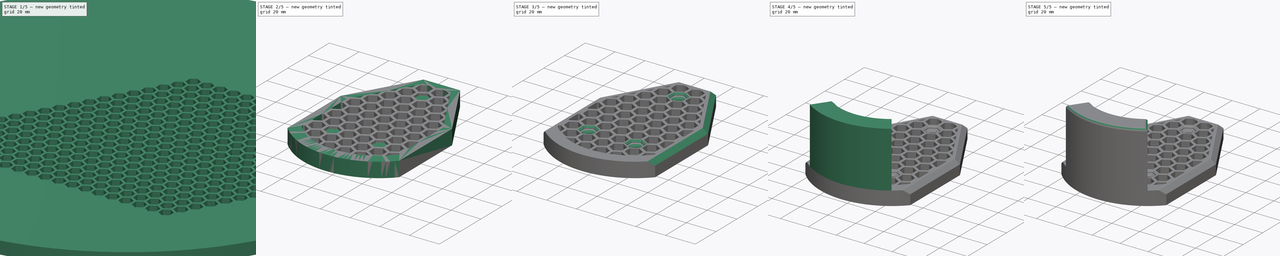
[diagram: build sequence overview — one tinted view per stage of 5, left to right]
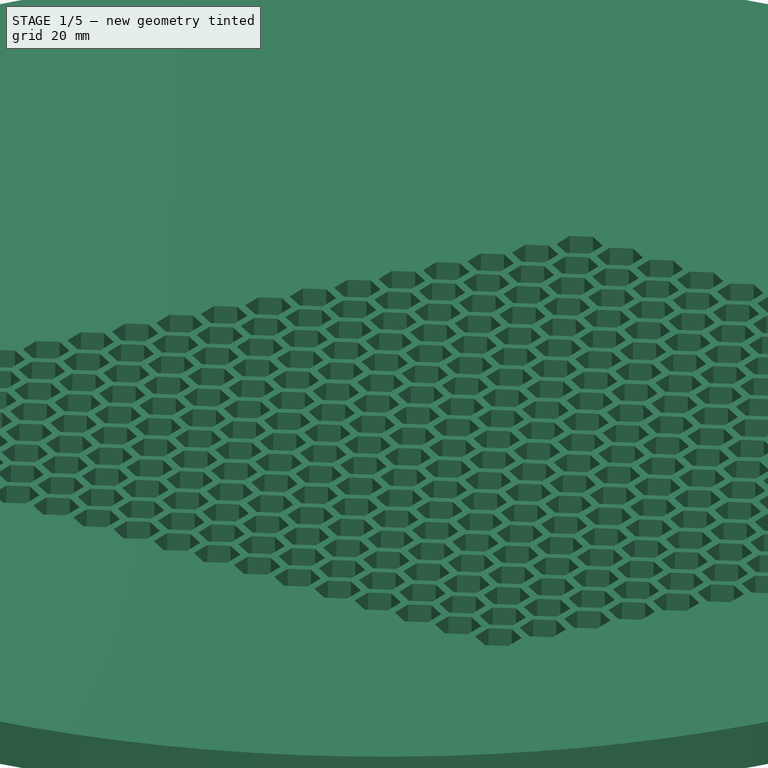
[diagram: stage 1 of 5 — iso view after this stage's code; geometry added in this stage tinted green]
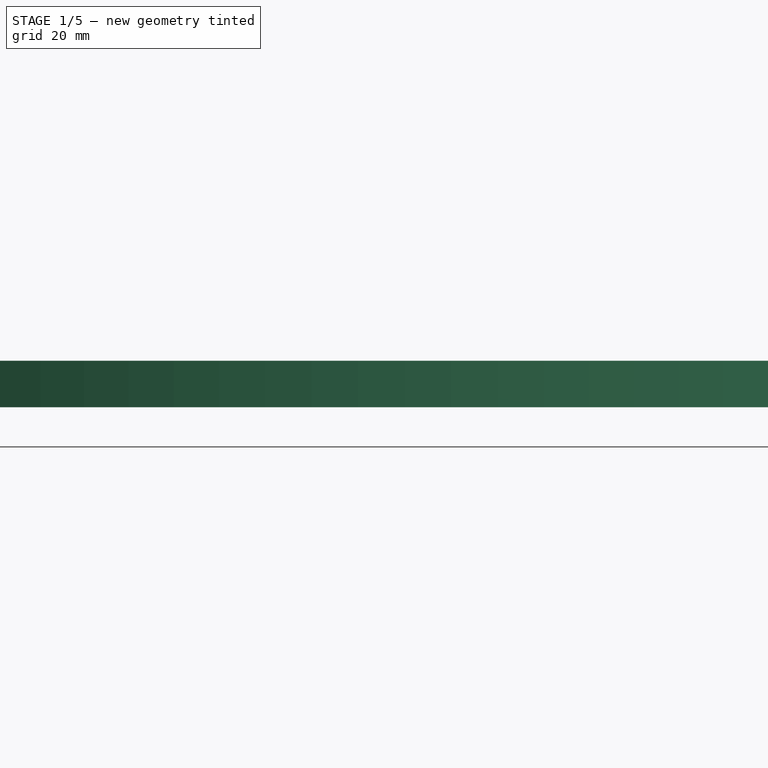
[diagram: stage 1 of 5 — front view after this stage's code; geometry added in this stage tinted green]
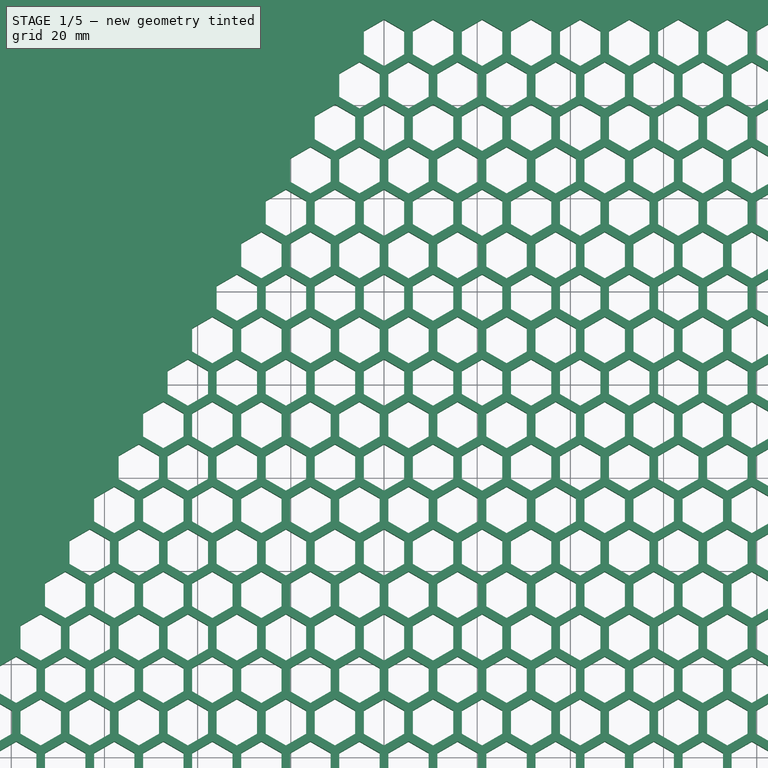
[diagram: stage 1 of 5 — top view after this stage's code; geometry added in this stage tinted green]
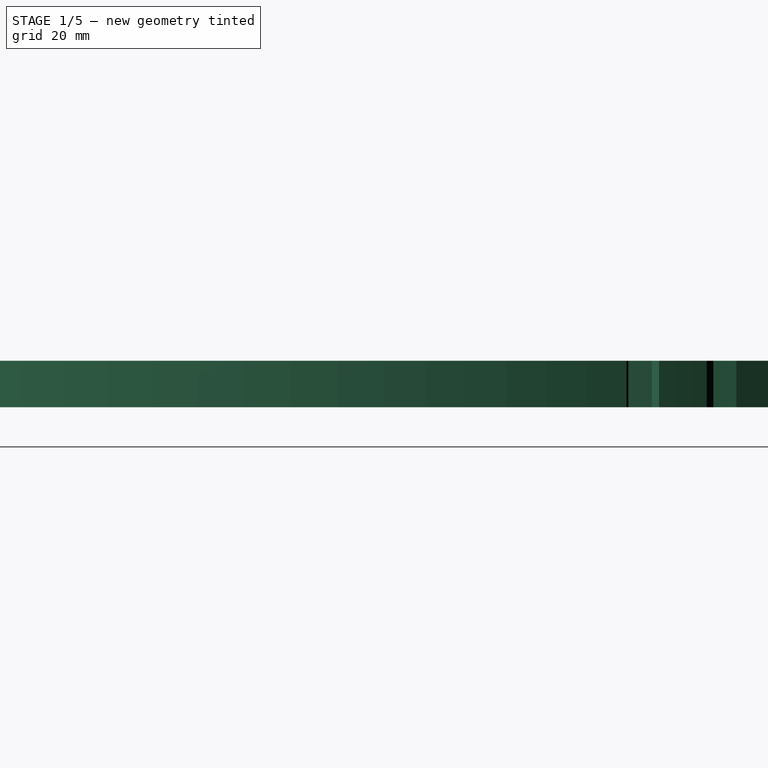
[diagram: stage 1 of 5 — right view after this stage's code; geometry added in this stage tinted green]
FCSTD DOCUMENT  (FreeCAD 0.19R14555 (Git shallow))
Label: heel
License: All rights reserved
LicenseURL: http://en.wikipedia.org/wiki/All_rights_reserved
objects: Sketcher::SketchObject×9, PartDesign::Pad×6, PartDesign::Chamfer×3, PartDesign::Pocket×2, PartDesign::LinearPattern×2, PartDesign::Fillet×2, PartDesign::Line×1, PartDesign::MultiTransform×1, PartDesign::Hole×1, PartDesign::Body×1
note: 42 computed .brp shape members not serialized (recipe doc carries the construction recipe); baked Part::Feature solids carry a one-line shape summary decoded from their .brp

FEATURE [Sketcher::SketchObject] Sketch
  FullyConstrained = true
  MapMode = 5
  Support = -> [XY_Plane]
  sketch-geometry (1):
    g0: Circle CenterX=0 CenterY=0 CenterZ=0 NormalX=0 NormalY=0 NormalZ=1 AngleXU=0 Radius=200
  constraints (2):
    c: Coincident(g0,g-1)
    c: Radius(g0) = 200
FEATURE [PartDesign::Pad] Pad
  Direction = (1,1,1)
  Length = 10
  Length2 = 100
  Profile = -> Sketch
  Type = 0
FEATURE [Sketcher::SketchObject] Sketch001  label="hexagon"
  FullyConstrained = true
  MapMode = 5
  Placement = pos=(0,0,10) rot=(0,0,1;0rad)
  Support = -> [Pad]
  sketch-geometry (8):
    g0: LineSegment StartX=-100 StartY=-95 StartZ=0 EndX=-104.33 EndY=-97.5 EndZ=0
    g1: LineSegment StartX=-104.33 StartY=-97.5 StartZ=0 EndX=-104.33 EndY=-102.5 EndZ=0
    g2: LineSegment StartX=-104.33 StartY=-102.5 StartZ=0 EndX=-100 EndY=-105 EndZ=0
    g3: LineSegment StartX=-100 StartY=-105 StartZ=0 EndX=-95.6699 EndY=-102.5 EndZ=0
    g4: LineSegment StartX=-95.6699 StartY=-102.5 StartZ=0 EndX=-95.6699 EndY=-97.5 EndZ=0
    g5: LineSegment StartX=-95.6699 StartY=-97.5 StartZ=0 EndX=-100 EndY=-95 EndZ=0
    g6: Circle CenterX=-100 CenterY=-100 CenterZ=0 NormalX=0 NormalY=0 NormalZ=1 AngleXU=0 Radius=5
    g7: LineSegment StartX=-104.33 StartY=-102.5 StartZ=0 EndX=-100 EndY=-95 EndZ=0
  constraints (19):
    c: Coincident(g0,g1)
    c: Coincident(g1,g2)
    c: Coincident(g2,g3)
    c: Coincident(g3,g4)
    c: Coincident(g4,g5)
    c: Coincident(g5,g0)
    c: Equal(g0, g1-g5) x5
    c: PointOnObject(g0,g6)
    c: PointOnObject(g1,g6)
    c: PointOnObject(g2,g6)
    c: PointOnObject(g3,g6)
    c: PointOnObject(g4,g6)
    c: PointOnObject(g5,g6)
    c: DistanceX(g6,g-1) = 100
    c: DistanceY(g6,g-1) = 100
    c: Vertical(g1)
    c: Distance(g1) = 5
    c: Coincident(g7,g1)
    c: Coincident(g7,g0)
FEATURE [PartDesign::Pocket] Pocket
  BaseFeature = -> Pad
  Length = 5
  Length2 = 100
  Profile = -> Sketch001
  Type = 1
FEATURE [PartDesign::Line] DatumLine001
  AttacherType = Attacher::AttachEngineLine
  Length = 20
  MapMode = 29
  Placement = pos=(-33.8638,19.5513,10) rot=(0.186157,0.694747,0.694747;2.77349rad)
  ResizeMode = 0
FEATURE [PartDesign::LinearPattern] LinearPattern
  Direction = -> Sketch001 [H_Axis]
  Length = 200
  Occurrences = 20
FEATURE [PartDesign::LinearPattern] LinearPattern001
  Direction = -> DatumLine001
  Length = 200
  Occurrences = 20
FEATURE [PartDesign::MultiTransform] MultiTransform
  BaseFeature = -> Pocket
  Originals = -> [Pocket]
  Transformations = -> [LinearPattern,LinearPattern001]
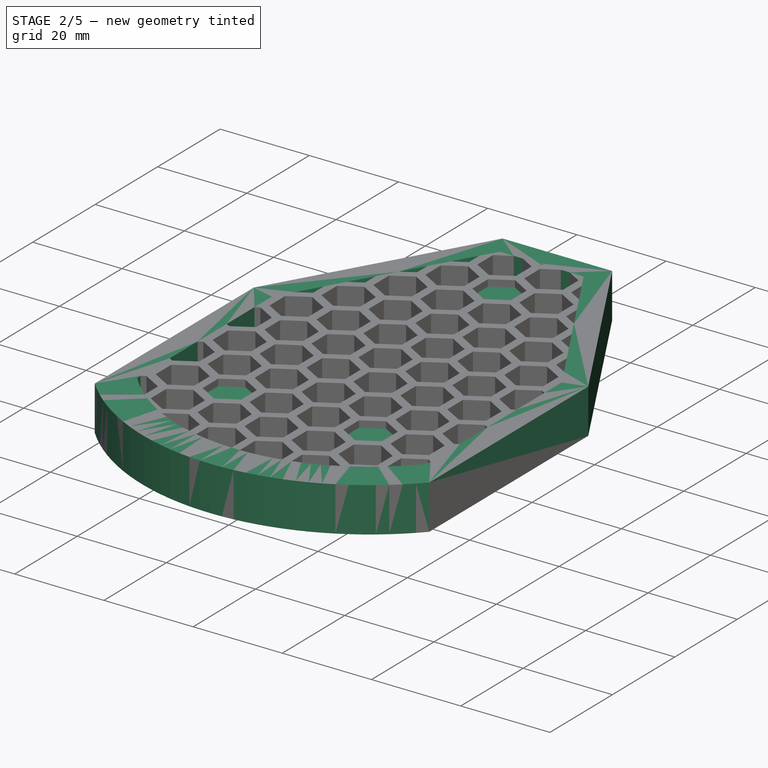
[diagram: stage 2 of 5 — iso view after this stage's code; geometry added in this stage tinted green]
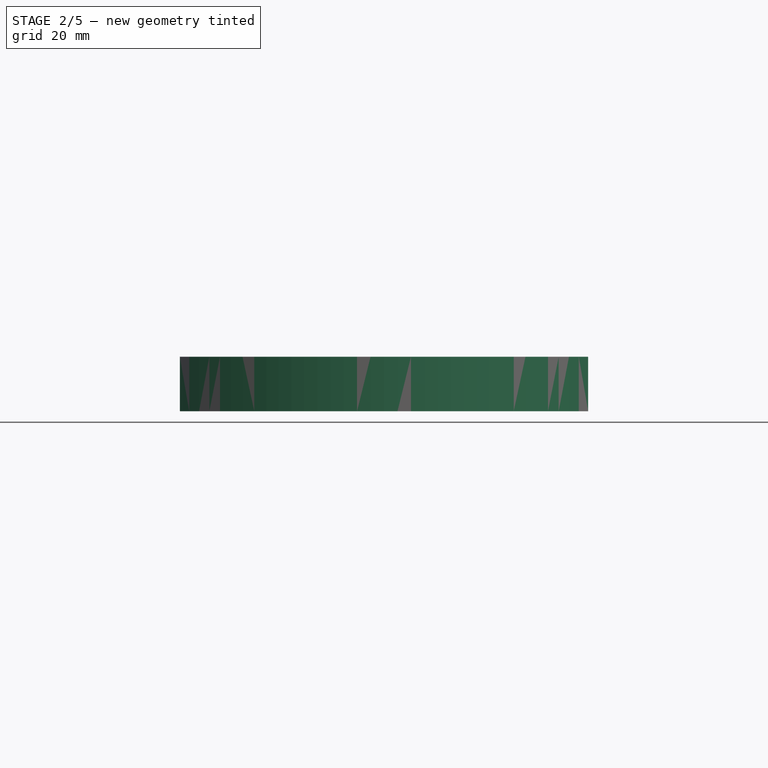
[diagram: stage 2 of 5 — front view after this stage's code; geometry added in this stage tinted green]
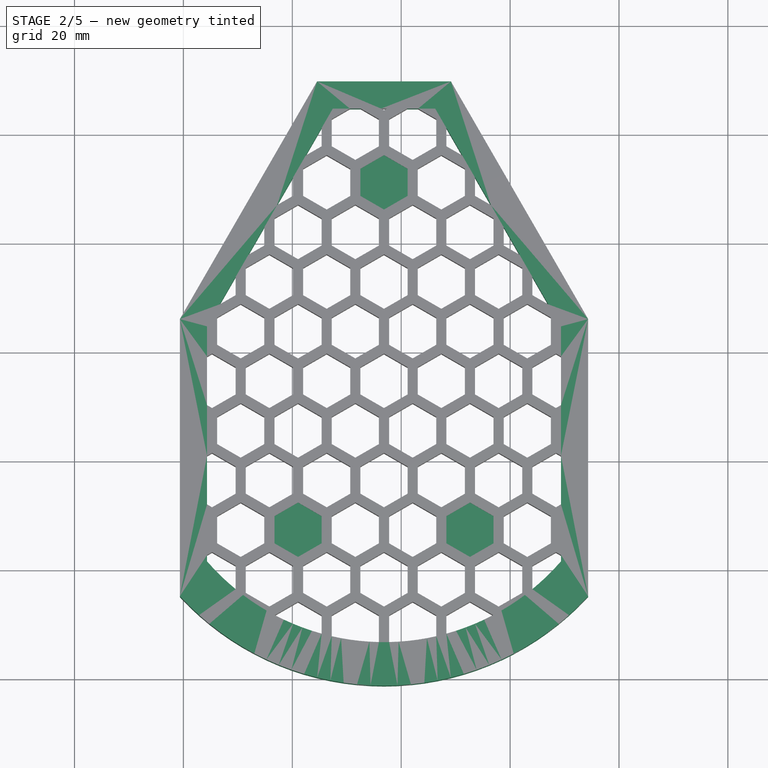
[diagram: stage 2 of 5 — top view after this stage's code; geometry added in this stage tinted green]
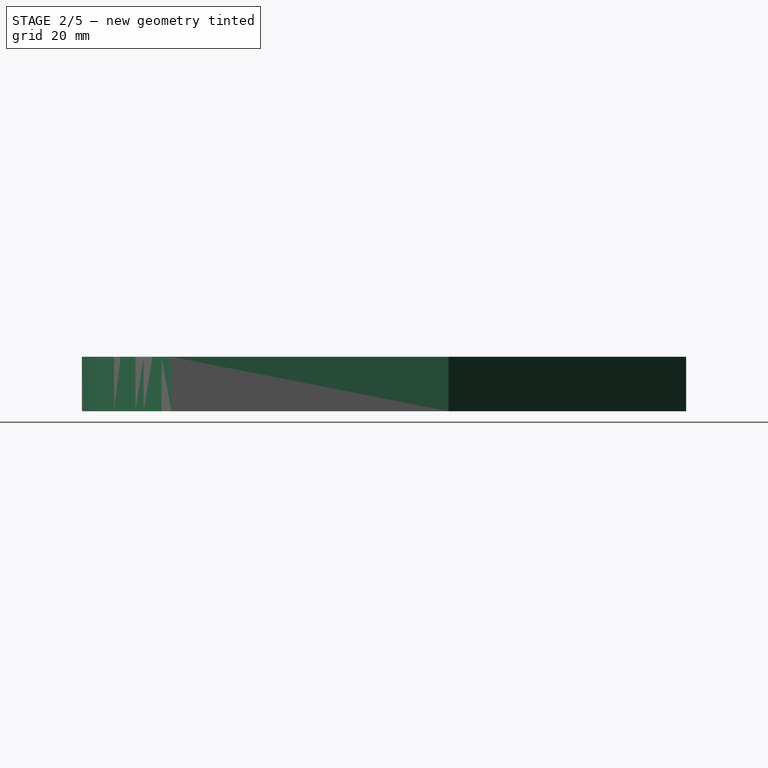
[diagram: stage 2 of 5 — right view after this stage's code; geometry added in this stage tinted green]
FEATURE [Sketcher::SketchObject] Sketch002
  ExternalGeometry = -> [MultiTransform]
  FullyConstrained = true
  MapMode = 5
  Placement = pos=(0,0,10) rot=(0,0,1;0rad)
  Support = -> [MultiTransform]
  sketch-geometry (10):
    g0: ArcOfCircle CenterX=36.8421 CenterY=-50.3037 CenterZ=0 NormalX=0 NormalY=0 NormalZ=1 AngleXU=0 Radius=43 StartAngle=3.85549 EndAngle=5.56929
    g1: Circle CenterX=0 CenterY=0 CenterZ=0 NormalX=0 NormalY=0 NormalZ=1 AngleXU=0 Radius=200
    g2: LineSegment StartX=4.34211 StartY=-78.4595 StartZ=0 EndX=4.34211 EndY=-35.3037 EndZ=0
    g3: LineSegment StartX=4.34211 StartY=-35.3037 StartZ=0 EndX=27.4361 EndY=4.69634 EndZ=0
    g4: LineSegment StartX=27.4361 StartY=4.69634 StartZ=0 EndX=36.8421 EndY=4.69634 EndZ=0
    g5: LineSegment StartX=36.8421 StartY=4.69634 StartZ=0 EndX=46.2481 EndY=4.69634 EndZ=0
    g6: LineSegment StartX=46.2481 StartY=4.69634 StartZ=0 EndX=69.3421 EndY=-35.3037 EndZ=0
    g7: LineSegment StartX=69.3421 StartY=-35.3037 StartZ=0 EndX=69.3421 EndY=-78.4595 EndZ=0
    g8: LineSegment StartX=36.8421 StartY=-50.3037 StartZ=0 EndX=4.34211 EndY=-50.3037 EndZ=0
    g9: LineSegment StartX=36.8421 StartY=-50.3037 StartZ=0 EndX=69.3421 EndY=-50.3037 EndZ=0
  constraints (29):
    c: Radius(g0) = 43
    c: Coincident(g0,g-3)
    c: Coincident(g1,g-1)
    c: Radius(g1) = 200
    c: Vertical(g2)
    c: Coincident(g2,g3)
    c: Coincident(g3,g4)
    c: Horizontal(g4)
    c: Coincident(g4,g5)
    c: Horizontal(g5)
    c: Coincident(g5,g6)
    c: Coincident(g6,g7)
    c: Vertical(g7)
    c: Equal(g3,g6)
    c: Equal(g4,g5)
    c: Angle(g3) = 1.0472
    c: Angle(g6) = -1.0472
    c: Coincident(g8,g0)
    c: PointOnObject(g8,g2)
    c: Horizontal(g8)
    c: Coincident(g9,g0)
    c: PointOnObject(g9,g7)
    c: Horizontal(g9)
    c: Equal(g8,g9)
    c: Distance(g8) = 32.5
    c: Coincident(g2,g0)
    c: Coincident(g0,g7)
    c: DistanceY(g0,g4) = 55
    c: DistanceY(g9,g6) = 15
FEATURE [PartDesign::Pocket] Pocket001  label="trim_honeycomb"
  BaseFeature = -> MultiTransform
  Length = 5
  Length2 = 100
  Profile = -> Sketch002
  Type = 1
FEATURE [Sketcher::SketchObject] Sketch003
  ExternalGeometry = -> [Pocket001]
  FullyConstrained = true
  MapMode = 5
  Placement = pos=(0,0,10) rot=(0,0,1;0rad)
  Support = -> [Pocket001]
  sketch-geometry (17):
    g0: LineSegment StartX=4.34211 StartY=-78.4595 StartZ=0 EndX=4.34211 EndY=-35.3037 EndZ=0
    g1: LineSegment StartX=4.34211 StartY=-35.3037 StartZ=0 EndX=27.4361 EndY=4.69634 EndZ=0
    g2: LineSegment StartX=27.4361 StartY=4.69634 StartZ=0 EndX=46.2481 EndY=4.69634 EndZ=0
    g3: LineSegment StartX=46.2481 StartY=4.69634 StartZ=0 EndX=69.3421 EndY=-35.3037 EndZ=0
    g4: LineSegment StartX=69.3421 StartY=-35.3037 StartZ=0 EndX=69.3421 EndY=-78.4595 EndZ=0
    g5: ArcOfCircle CenterX=36.8421 CenterY=-50.3037 CenterZ=0 NormalX=0 NormalY=0 NormalZ=1 AngleXU=0 Radius=43 StartAngle=3.85549 EndAngle=5.56929
    g6: LineSegment StartX=-0.657895 StartY=-84.8688 StartZ=0 EndX=-0.657895 EndY=-33.9639 EndZ=0
    g7: LineSegment StartX=-0.657895 StartY=-33.9639 StartZ=0 EndX=24.5494 EndY=9.69634 EndZ=0
    g8: LineSegment StartX=24.5494 StartY=9.69634 StartZ=0 EndX=49.1348 EndY=9.69634 EndZ=0
    g9: LineSegment StartX=49.1348 StartY=9.69634 StartZ=0 EndX=74.3421 EndY=-33.9639 EndZ=0
    g10: LineSegment StartX=74.3421 StartY=-33.9639 StartZ=0 EndX=74.3421 EndY=-84.8688 EndZ=0
    g11: LineSegment StartX=4.34211 StartY=-78.4595 StartZ=0 EndX=-0.657895 EndY=-78.4595 EndZ=0
    g12: LineSegment StartX=69.3421 StartY=-78.4595 StartZ=0 EndX=74.3421 EndY=-78.4595 EndZ=0
    g13: LineSegment StartX=27.4361 StartY=4.69634 StartZ=0 EndX=27.4361 EndY=9.69634 EndZ=0
    g14: LineSegment StartX=4.34211 StartY=-35.3037 StartZ=0 EndX=0.0119782 EndY=-32.8037 EndZ=0
    g15: ArcOfCircle CenterX=36.8421 CenterY=-50.3037 CenterZ=0 NormalX=0 NormalY=0 NormalZ=1 AngleXU=0 Radius=51 StartAngle=3.88629 EndAngle=5.53849
    g16: LineSegment StartX=36.8421 StartY=-101.304 StartZ=0 EndX=36.8421 EndY=-93.3037 EndZ=0
  constraints (49):
    c: Coincident(g0,g-3)
    c: Vertical(g0)
    c: Coincident(g0,g1)
    c: Coincident(g1,g-4)
    c: Coincident(g1,g2)
    c: Coincident(g2,g-7)
    c: Coincident(g2,g3)
    c: Coincident(g3,g-5)
    c: Coincident(g3,g4)
    c: Vertical(g4)
    c: Coincident(g5,g-6)
    c: PointOnObject(g-6,g5)
    c: Coincident(g4,g5)
    c: Coincident(g0,g5)
    c: Vertical(g6)
    c: Coincident(g6,g7)
    c: Coincident(g7,g8)
    c: Horizontal(g8)
    c: Coincident(g8,g9)
    c: Coincident(g9,g10)
    c: Vertical(g10)
    c: Equal(g6,g10)
    c: Equal(g7,g9)
    c: Parallel(g7,g1)
    c: Parallel(g3,g9)
    c: Coincident(g11,g0)
    c: PointOnObject(g11,g6)
    c: Horizontal(g11)
    c: Coincident(g12,g4)
    c: PointOnObject(g12,g10)
    c: Horizontal(g12)
    c: Coincident(g13,g1)
    c: PointOnObject(g13,g8)
    c: Vertical(g13)
    c: PointOnObject(g14,g7)
    c: Equal(g11,g12)
    c: Distance(g12) = 5
    c: Perpendicular(g1,g14)
    c: Distance(g14) = 5
    c: Distance(g13) = 5
    c: Coincident(g15,g5)
    c: Coincident(g14,g0)
    c: PointOnObject(g16,g15)
    c: PointOnObject(g16,g5)
    c: Perpendicular(g15,g16)
    c: Distance(g16) = 8
    c: Vertical(g16)
    c: Coincident(g15,g6)
    c: PointOnObject(g15,g10)
FEATURE [PartDesign::Pad] Pad001  label="inner_rim"
  BaseFeature = -> Pocket001
  Direction = (1,1,1)
  Length = 10
  Length2 = 100
  Profile = -> Sketch003
  Reversed = true
  Type = 1
FEATURE [Sketcher::SketchObject] Sketch004
  ExternalGeometry = -> [Pad001]
  FullyConstrained = true
  MapMode = 5
  Placement = pos=(0,0,0) rot=(1,0,0;3.14159rad)
  Support = -> [Pad001]
  sketch-geometry (21):
    g0: LineSegment StartX=52.6316 StartY=77.6518 StartZ=0 EndX=48.3015 EndY=75.1518 EndZ=0
    g1: LineSegment StartX=48.3015 StartY=75.1518 StartZ=0 EndX=48.3015 EndY=70.1518 EndZ=0
    g2: LineSegment StartX=48.3015 StartY=70.1518 StartZ=0 EndX=52.6316 EndY=67.6518 EndZ=0
    g3: LineSegment StartX=52.6316 StartY=67.6518 StartZ=0 EndX=56.9617 EndY=70.1518 EndZ=0
    g4: LineSegment StartX=56.9617 StartY=70.1518 StartZ=0 EndX=56.9617 EndY=75.1518 EndZ=0
    g5: LineSegment StartX=56.9617 StartY=75.1518 StartZ=0 EndX=52.6316 EndY=77.6518 EndZ=0
    g6: Circle CenterX=52.6316 CenterY=72.6518 CenterZ=0 NormalX=0 NormalY=0 NormalZ=1 AngleXU=0 Radius=5
    g7: LineSegment StartX=21.0526 StartY=77.6518 StartZ=0 EndX=16.7225 EndY=75.1518 EndZ=0
    g8: LineSegment StartX=16.7225 StartY=75.1518 StartZ=0 EndX=16.7225 EndY=70.1518 EndZ=0
    g9: LineSegment StartX=16.7225 StartY=70.1518 StartZ=0 EndX=21.0526 EndY=67.6518 EndZ=0
    g10: LineSegment StartX=21.0526 StartY=67.6518 StartZ=0 EndX=25.3828 EndY=70.1518 EndZ=0
    g11: LineSegment StartX=25.3828 StartY=70.1518 StartZ=0 EndX=25.3828 EndY=75.1518 EndZ=0
    g12: LineSegment StartX=25.3828 StartY=75.1518 StartZ=0 EndX=21.0526 EndY=77.6518 EndZ=0
    g13: Circle CenterX=21.0526 CenterY=72.6518 CenterZ=0 NormalX=0 NormalY=0 NormalZ=1 AngleXU=0 Radius=5
    g14: LineSegment StartX=36.8421 StartY=13.8394 StartZ=0 EndX=32.512 EndY=11.3394 EndZ=0
    g15: LineSegment StartX=32.512 StartY=11.3394 StartZ=0 EndX=32.512 EndY=6.33943 EndZ=0
    g16: LineSegment StartX=32.512 StartY=6.33943 StartZ=0 EndX=36.8421 EndY=3.83943 EndZ=0
    g17: LineSegment StartX=36.8421 StartY=3.83943 StartZ=0 EndX=41.1722 EndY=6.33943 EndZ=0
    g18: LineSegment StartX=41.1722 StartY=6.33943 StartZ=0 EndX=41.1722 EndY=11.3394 EndZ=0
    g19: LineSegment StartX=41.1722 StartY=11.3394 StartZ=0 EndX=36.8421 EndY=13.8394 EndZ=0
    g20: Circle CenterX=36.8421 CenterY=8.83943 CenterZ=0 NormalX=0 NormalY=0 NormalZ=1 AngleXU=0 Radius=5
  constraints (45):
    c: Coincident(g0,g1)
    c: Coincident(g1,g2)
    c: Coincident(g2,g3)
    c: Coincident(g3,g4)
    c: Coincident(g4,g5)
    c: Coincident(g5,g0)
    c: Equal(g0, g1-g5) x5
    c: PointOnObject(g0,g6)
    c: PointOnObject(g1,g6)
    c: PointOnObject(g2,g6)
    c: PointOnObject(g3,g6)
    c: PointOnObject(g4,g6)
    c: PointOnObject(g5,g6)
    c: Coincident(g5,g-9)
    c: Coincident(g-10,g1)
    c: Coincident(g7,g8)
    c: Coincident(g8,g9)
    c: Coincident(g9,g10)
    c: Coincident(g10,g11)
    c: Coincident(g11,g12)
    c: Coincident(g12,g7)
    c: Equal(g7, g8-g12) x5
    c: PointOnObject(g7,g13)
    c: PointOnObject(g8,g13)
    c: PointOnObject(g9,g13)
    c: PointOnObject(g10,g13)
    c: PointOnObject(g11,g13)
    c: PointOnObject(g12,g13)
    c: Coincident(g12,g-6)
    c: Coincident(g8,g-7)
    c: Coincident(g14,g15)
    c: Coincident(g15,g16)
    c: Coincident(g16,g17)
    c: Coincident(g17,g18)
    c: Coincident(g18,g19)
    c: Coincident(g19,g14)
    c: Equal(g14, g15-g19) x5
    c: PointOnObject(g14,g20)
    c: PointOnObject(g15,g20)
    c: PointOnObject(g16,g20)
    c: PointOnObject(g17,g20)
    c: PointOnObject(g18,g20)
    c: PointOnObject(g19,g20)
    c: Coincident(g19,g-4)
    c: Coincident(g-3,g15)
FEATURE [PartDesign::Pad] Pad002  label="screw_pads"
  BaseFeature = -> Pad001
  Direction = (1,1,1)
  Length = 8.5
  Length2 = 100
  Profile = -> Sketch004
  Reversed = true
  Type = 0
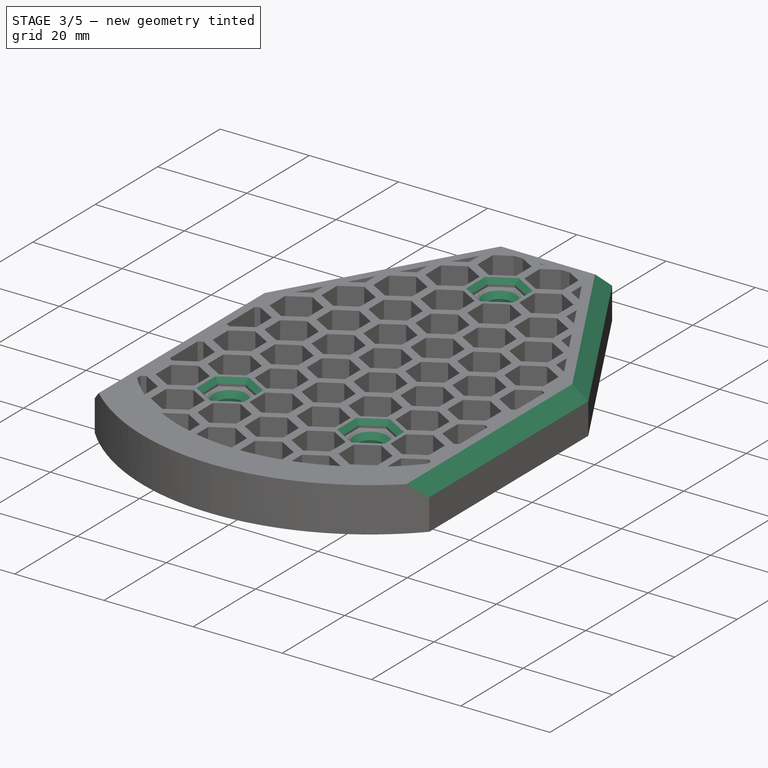
[diagram: stage 3 of 5 — iso view after this stage's code; geometry added in this stage tinted green]
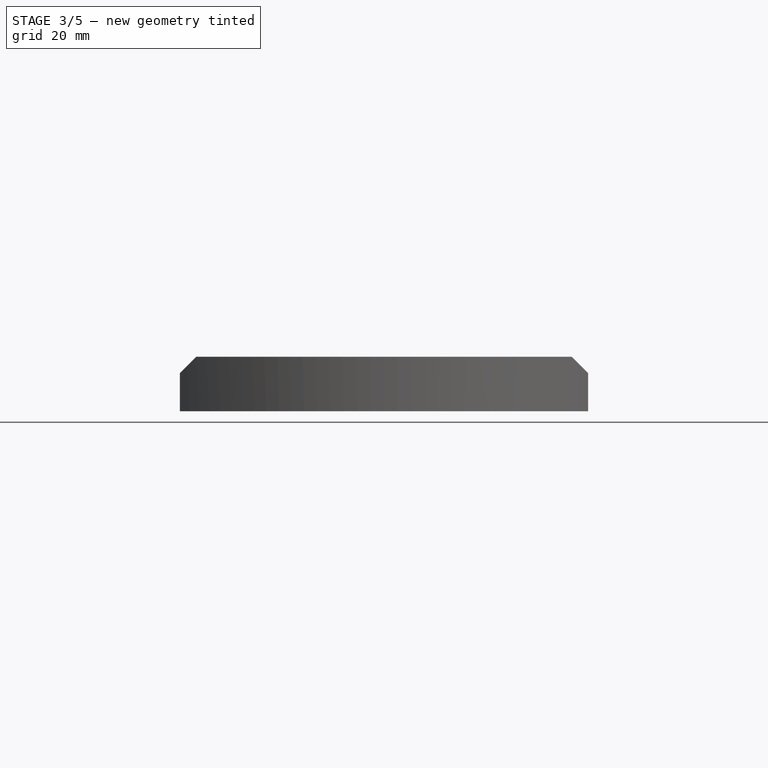
[diagram: stage 3 of 5 — front view after this stage's code; geometry added in this stage tinted green]
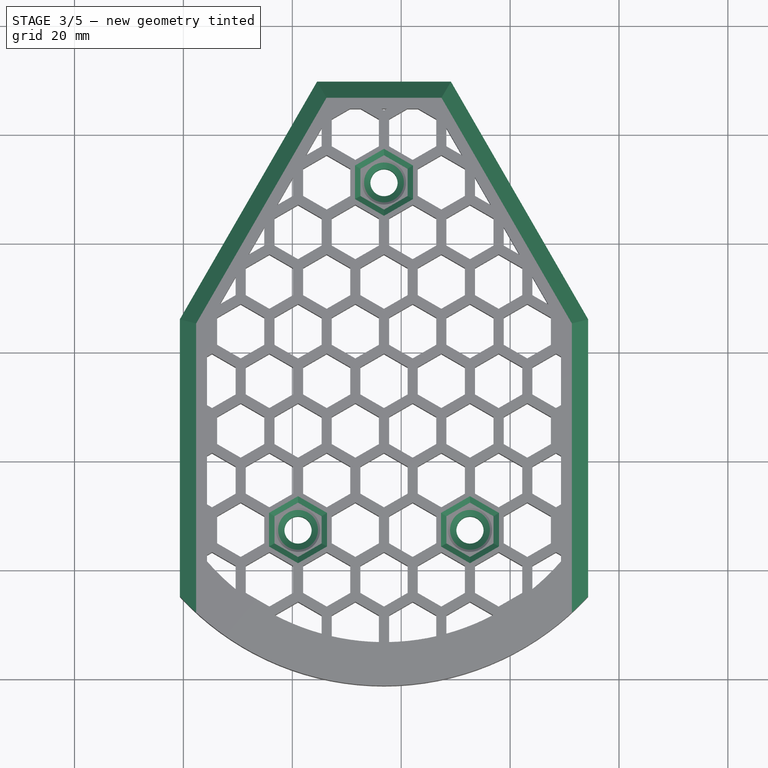
[diagram: stage 3 of 5 — top view after this stage's code; geometry added in this stage tinted green]
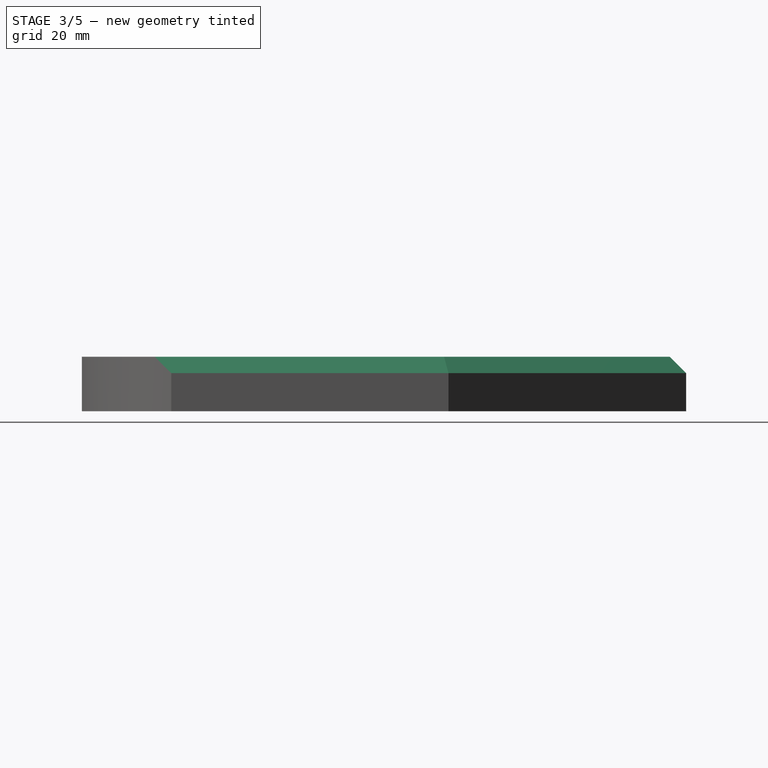
[diagram: stage 3 of 5 — right view after this stage's code; geometry added in this stage tinted green]
FEATURE [Sketcher::SketchObject] Sketch005
  ExternalGeometry = -> [Pad002]
  FullyConstrained = true
  MapMode = 5
  Placement = pos=(0,0,8.5) rot=(0,0,1;0rad)
  Support = -> [Pad002]
  sketch-geometry (3):
    g0: Circle CenterX=36.8421 CenterY=-8.83943 CenterZ=0 NormalX=0 NormalY=0 NormalZ=1 AngleXU=0 Radius=5
    g1: Circle CenterX=21.0526 CenterY=-72.6518 CenterZ=0 NormalX=0 NormalY=0 NormalZ=1 AngleXU=0 Radius=5
    g2: Circle CenterX=52.6316 CenterY=-72.6518 CenterZ=0 NormalX=0 NormalY=0 NormalZ=1 AngleXU=0 Radius=5
  constraints (9):
    c: PointOnObject(g-9,g0)
    c: PointOnObject(g-10,g0)
    c: PointOnObject(g-11,g0)
    c: PointOnObject(g-3,g1)
    c: PointOnObject(g-4,g1)
    c: PointOnObject(g-5,g1)
    c: PointOnObject(g-6,g2)
    c: PointOnObject(g-7,g2)
    c: PointOnObject(g-8,g2)
FEATURE [PartDesign::Hole] Hole
  BaseFeature = -> Pad002
  Depth = 25
  DepthType = 0
  Diameter = 5
  DrillForDepth = false
  DrillPoint = 1
  DrillPointAngle = 118
  HoleCutCountersinkAngle = 90
  HoleCutCustomValues = false
  HoleCutDepth = 1
  HoleCutDiameter = 8.1
  HoleCutType = 2
  ModelActualThread = false
  Profile = -> Sketch005
  Tapered = false
  TaperedAngle = 90
  ThreadAngle = 0
  ThreadClass = 0
  ThreadCutOffInner = 0
  ThreadCutOffOuter = 0
  ThreadDirection = 0
  ThreadFit = 0
  ThreadPitch = 0
  ThreadSize = 6
  ThreadType = 3
  Threaded = false
FEATURE [PartDesign::Chamfer] Chamfer
  Angle = 45
  Base = -> Hole [Edge1118,Edge1107,Edge1110,Edge1112,Edge1114]
  BaseFeature = -> Hole
  ChamferType = 0
  FlipDirection = false
  Size = 3
  Size2 = 1
  SupportTransform = false
FEATURE [PartDesign::Chamfer] Chamfer001
  Angle = 45
  Base = -> Chamfer [Edge713,Edge715,Edge717,Edge716,Edge714,Edge712,Edge839,Edge841,Edge843,Edge842,Edge840,Edge838,Edge809,Edge811,Edge808,Edge810,Edge812,Edge813]
  BaseFeature = -> Chamfer
  ChamferType = 0
  FlipDirection = false
  Size = 1
  Size2 = 1
  SupportTransform = false
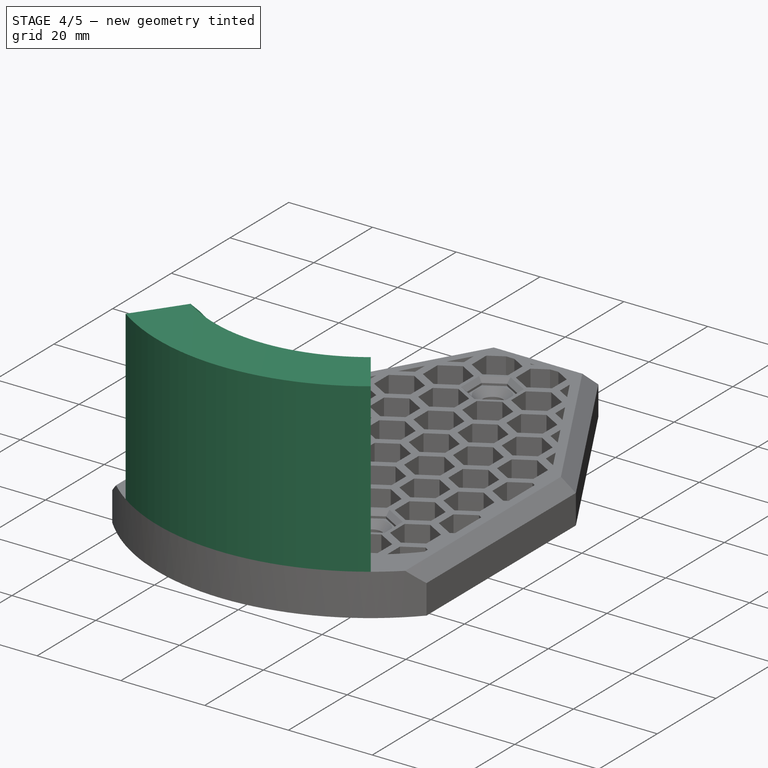
[diagram: stage 4 of 5 — iso view after this stage's code; geometry added in this stage tinted green]
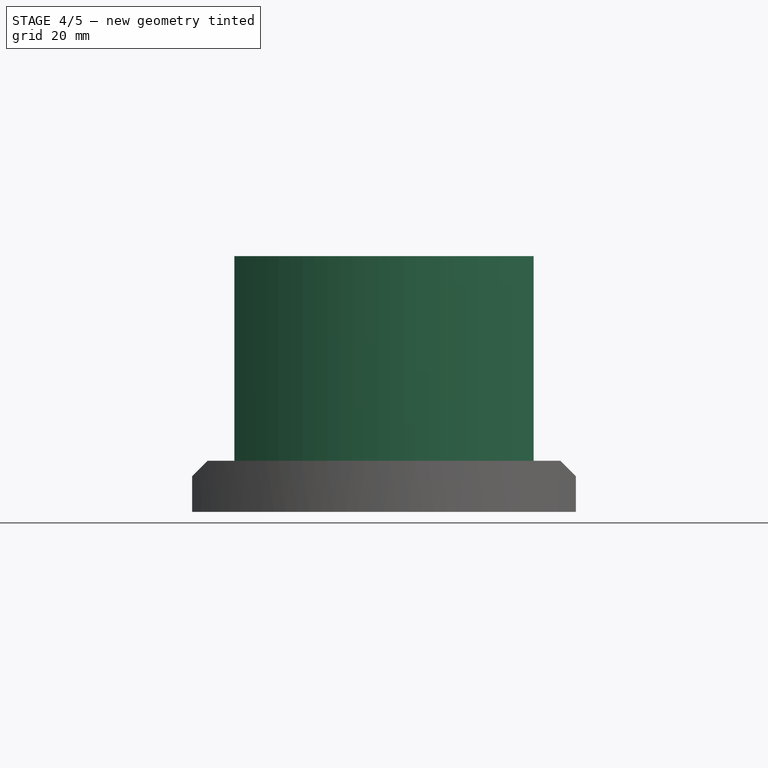
[diagram: stage 4 of 5 — front view after this stage's code; geometry added in this stage tinted green]
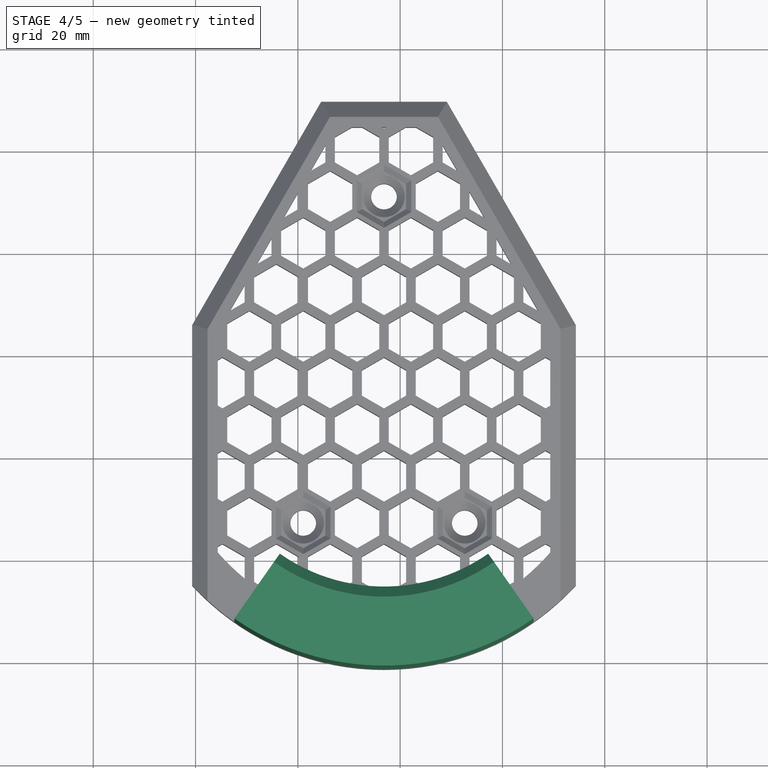
[diagram: stage 4 of 5 — top view after this stage's code; geometry added in this stage tinted green]
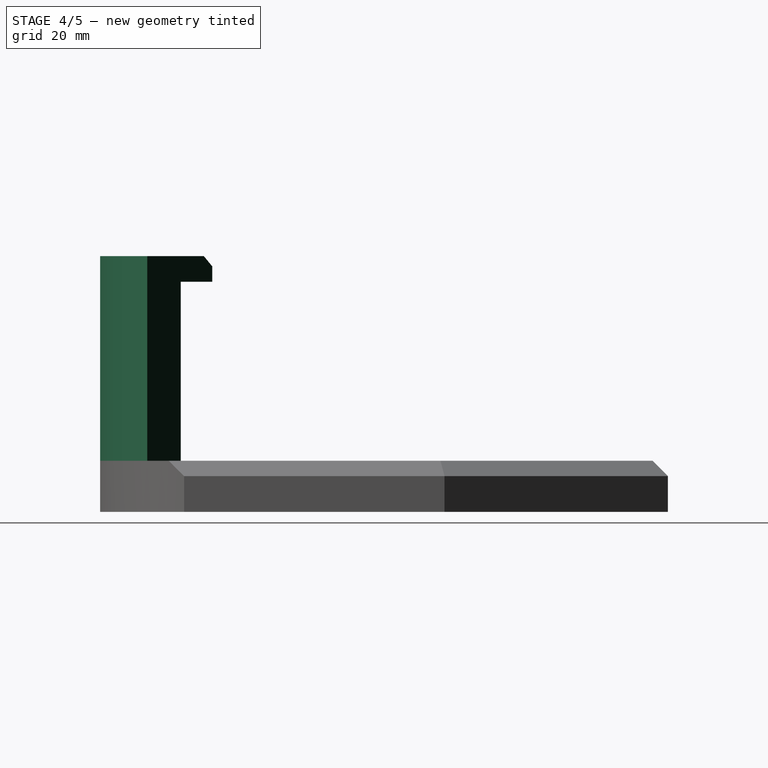
[diagram: stage 4 of 5 — right view after this stage's code; geometry added in this stage tinted green]
FEATURE [Sketcher::SketchObject] Sketch006
  ExternalGeometry = -> [Chamfer001]
  FullyConstrained = true
  MapMode = 5
  Placement = pos=(0,0,10) rot=(0,0,1;0rad)
  Support = -> [Chamfer001]
  sketch-geometry (4):
    g0: ArcOfCircle CenterX=36.8421 CenterY=-50.3037 CenterZ=0 NormalX=0 NormalY=0 NormalZ=1 AngleXU=0 Radius=51 StartAngle=4.10152 EndAngle=5.32325
    g1: ArcOfCircle CenterX=36.8421 CenterY=-50.3037 CenterZ=0 NormalX=0 NormalY=0 NormalZ=1 AngleXU=0 Radius=43 StartAngle=4.10152 EndAngle=5.32325
    g2: LineSegment StartX=12.1783 StartY=-85.5272 StartZ=0 EndX=7.58971 EndY=-92.0804 EndZ=0
    g3: LineSegment StartX=61.5059 StartY=-85.5272 StartZ=0 EndX=66.0945 EndY=-92.0804 EndZ=0
  constraints (12):
    c: Coincident(g0,g-3)
    c: PointOnObject(g-3,g0)
    c: Coincident(g1,g0)
    c: PointOnObject(g-4,g1)
    c: Angle(g2) = -2.18166
    c: Angle(g3) = -0.959931
    c: Coincident(g0,g2)
    c: Coincident(g2,g1)
    c: Coincident(g3,g1)
    c: Coincident(g3,g0)
    c: Perpendicular(g0,g3)
    c: Perpendicular(g0,g2)
FEATURE [PartDesign::Pad] Pad003  label="heel_riser"
  BaseFeature = -> Chamfer001
  Direction = (1,1,1)
  Length = 35
  Length2 = 100
  Profile = -> Sketch006
  Type = 0
FEATURE [Sketcher::SketchObject] Sketch007
  ExternalGeometry = -> [Pad003]
  FullyConstrained = true
  MapMode = 5
  Placement = pos=(0,0,45) rot=(0,0,1;0rad)
  Support = -> [Pad003]
  sketch-geometry (4):
    g0: LineSegment StartX=7.58971 StartY=-92.0804 StartZ=0 EndX=16.4801 EndY=-79.3836 EndZ=0
    g1: LineSegment StartX=66.0945 StartY=-92.0804 StartZ=0 EndX=57.2041 EndY=-79.3836 EndZ=0
    g2: ArcOfCircle CenterX=36.8421 CenterY=-50.3037 CenterZ=0 NormalX=0 NormalY=0 NormalZ=1 AngleXU=0 Radius=35.5 StartAngle=4.10152 EndAngle=5.32325
    g3: ArcOfCircle CenterX=36.8421 CenterY=-50.3037 CenterZ=0 NormalX=0 NormalY=0 NormalZ=1 AngleXU=0 Radius=51 StartAngle=4.10152 EndAngle=5.32325
  constraints (11):
    c: Coincident(g0,g-3)
    c: Coincident(g1,g-3)
    c: Coincident(g2,g-3)
    c: Radius(g2) = 35.5
    c: Coincident(g2,g0)
    c: Coincident(g2,g1)
    c: Perpendicular(g2,g1)
    c: Perpendicular(g2,g0)
    c: Coincident(g3,g2)
    c: Coincident(g3,g0)
    c: Block(g3)
FEATURE [PartDesign::Pad] Pad004  label="heel_clip"
  BaseFeature = -> Pad003
  Direction = (1,1,1)
  Length = 5
  Length2 = 100
  Profile = -> Sketch007
  Type = 0
FEATURE [PartDesign::Chamfer] Chamfer002
  Angle = 45
  Base = -> Pad004 [Edge1250]
  BaseFeature = -> Pad004
  ChamferType = 0
  FlipDirection = false
  Size = 2
  Size2 = 1
  SupportTransform = false
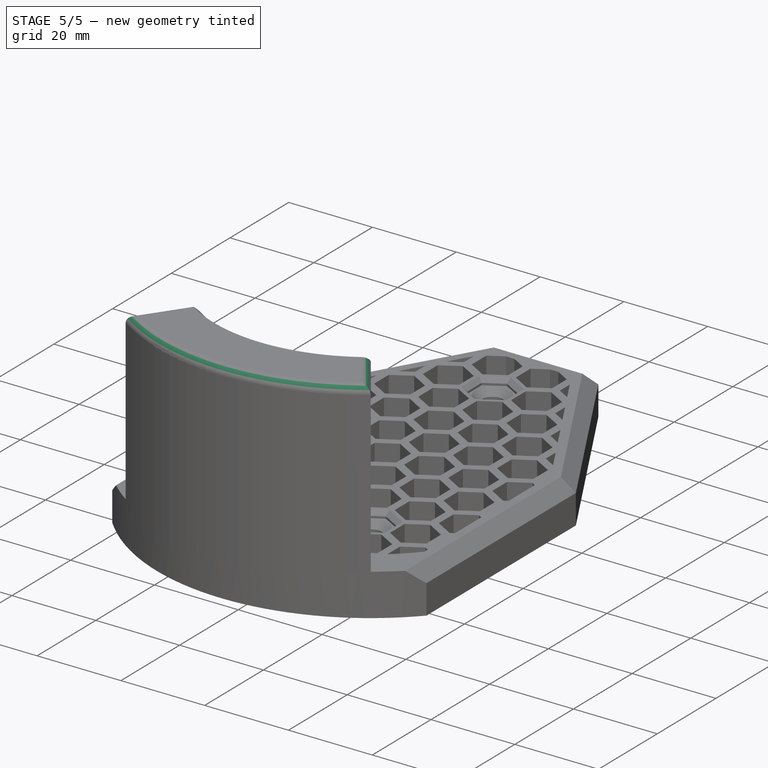
[diagram: stage 5 of 5 — iso view after this stage's code; geometry added in this stage tinted green]
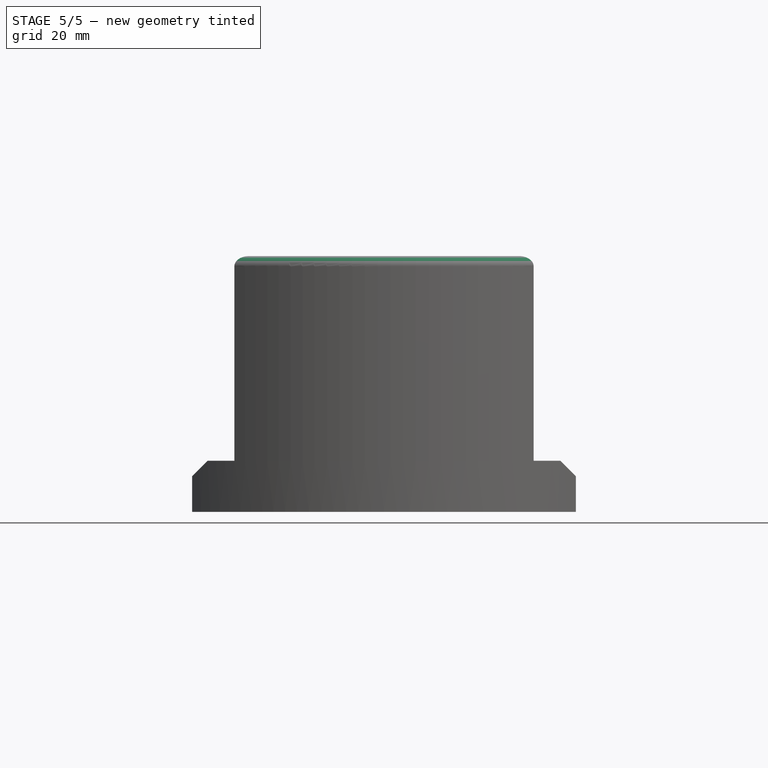
[diagram: stage 5 of 5 — front view after this stage's code; geometry added in this stage tinted green]
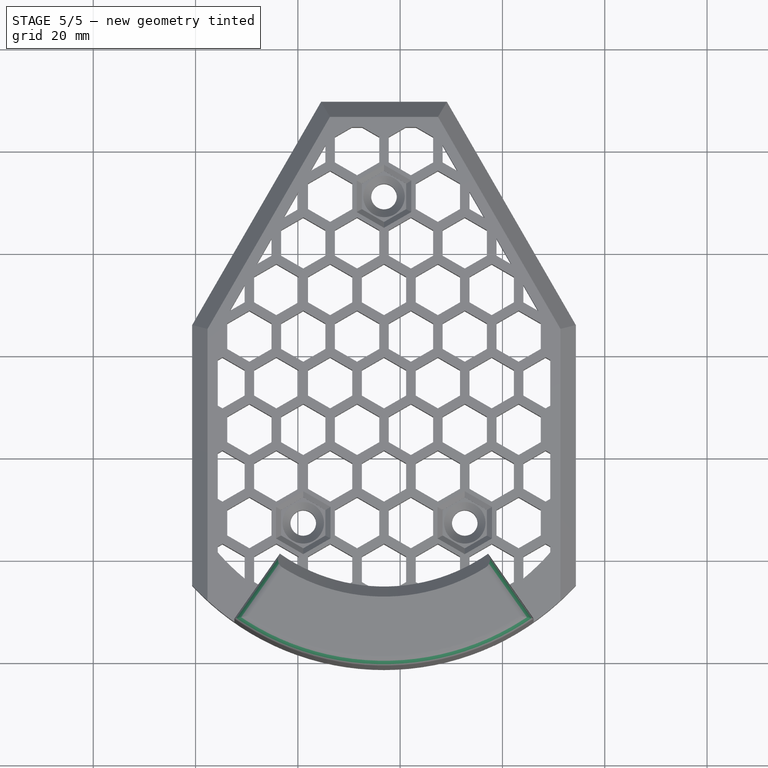
[diagram: stage 5 of 5 — top view after this stage's code; geometry added in this stage tinted green]
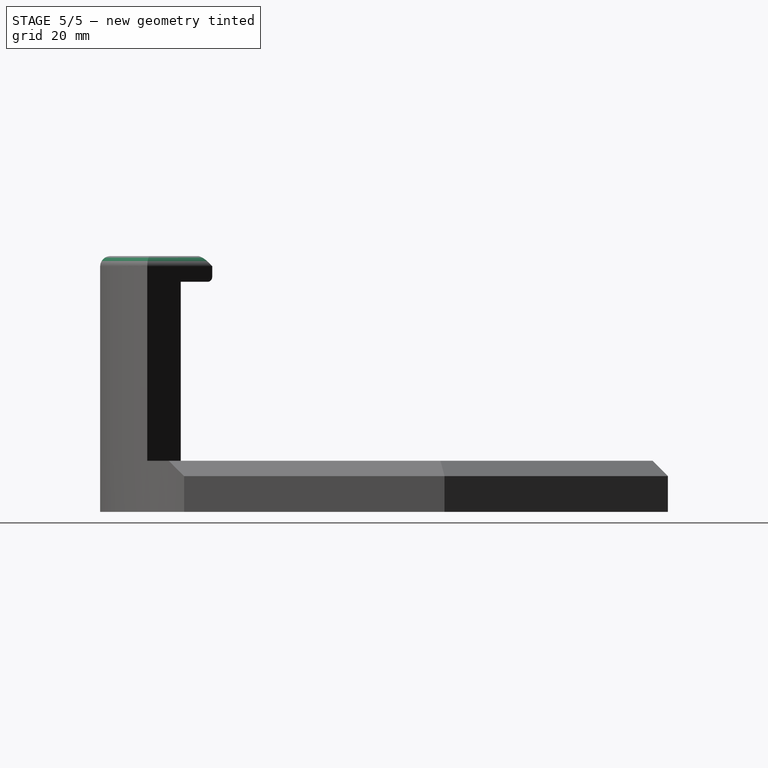
[diagram: stage 5 of 5 — right view after this stage's code; geometry added in this stage tinted green]
FEATURE [PartDesign::Fillet] Fillet
  Base = -> Chamfer002 [Edge4,Edge15,Edge14]
  BaseFeature = -> Chamfer002
  Radius = 2
  SupportTransform = false
FEATURE [PartDesign::Fillet] Fillet001
  Base = -> Fillet [Edge16]
  BaseFeature = -> Fillet
  Radius = 1
  SupportTransform = false
FEATURE [Sketcher::SketchObject] Sketch008
  ExternalGeometry = -> [Fillet001]
  FullyConstrained = true
  MapMode = 5
  Placement = pos=(0,0,10) rot=(0,0,1;0rad)
  Support = -> [Fillet001]
  sketch-geometry (3):
    g0: LineSegment StartX=36.3162 StartY=4.69634 StartZ=0 EndX=36.8421 EndY=4.39268 EndZ=0
    g1: LineSegment StartX=36.8421 StartY=4.39268 StartZ=0 EndX=37.3681 EndY=4.69634 EndZ=0
    g2: LineSegment StartX=37.3681 StartY=4.69634 StartZ=0 EndX=36.3162 EndY=4.69634 EndZ=0
  constraints (6):
    c: Coincident(g-4,g0)
    c: Coincident(g0,g-5)
    c: Coincident(g0,g1)
    c: Coincident(g1,g-5)
    c: Coincident(g1,g2)
    c: Coincident(g2,g0)
FEATURE [PartDesign::Pad] Pad005
  BaseFeature = -> Fillet001
  Direction = (1,1,1)
  Length = 10
  Length2 = 100
  Profile = -> Sketch008
  Type = 3
  UpToFace = -> Fillet001 [Face387]
FEATURE [PartDesign::Body] Body
  Group = -> [Sketch,Pad,Sketch001,Pocket,DatumLine001,MultiTransform,LinearPattern,LinearPattern001,Sketch002,Pocket001,Sketch003,Pad001,Sketch004,Pad002,Sketch005,Hole,Chamfer,Chamfer001,Sketch006,Pad003,Sketch007,Pad004,Chamfer002,Fillet,Fillet001,Sketch008,Pad005]
  Origin = -> Origin
  Tip = -> Pad005
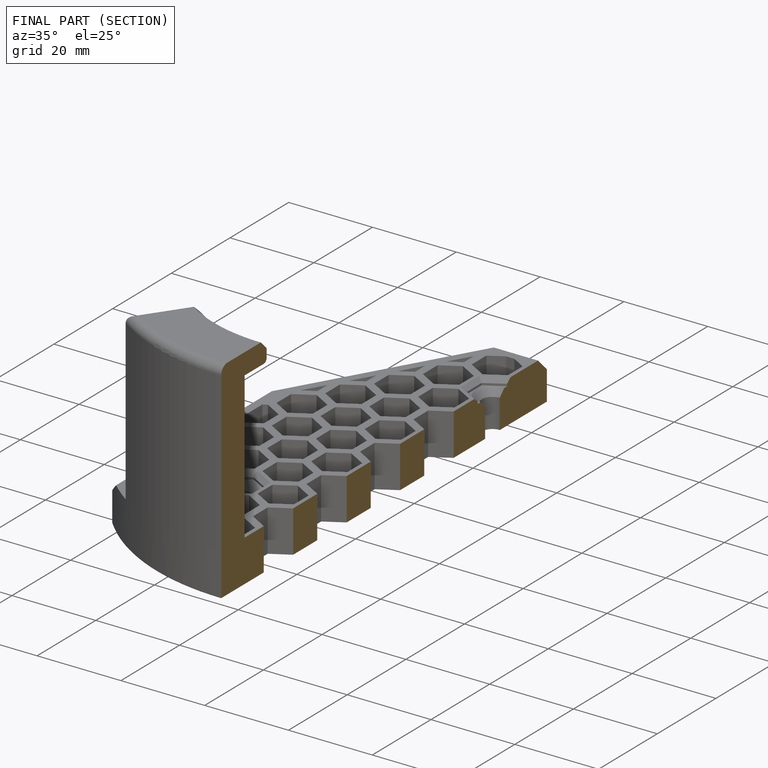
[diagram: finished part — half-section view (interior)]
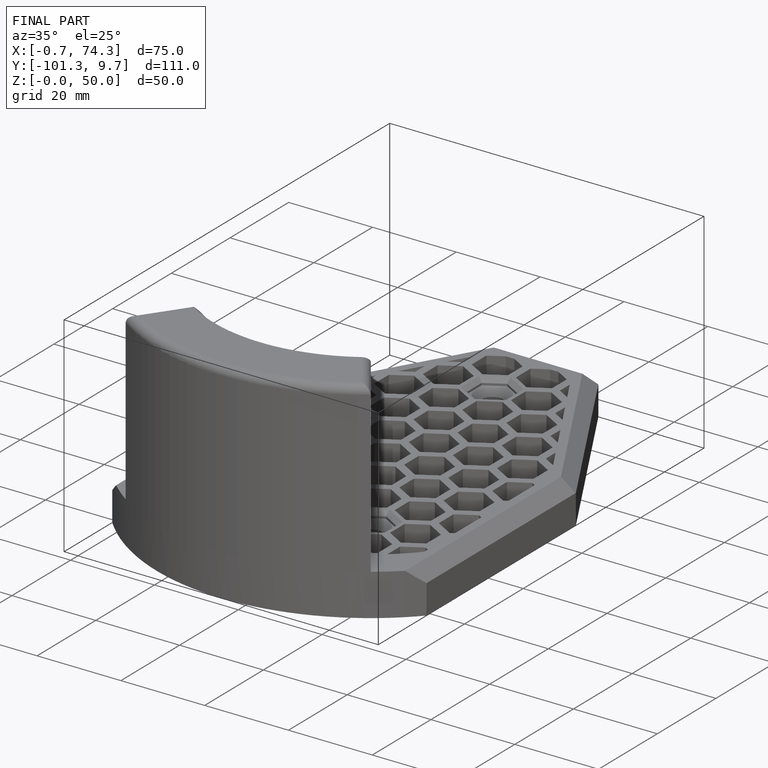
[diagram: finished part — iso view with bounding-box wireframe]
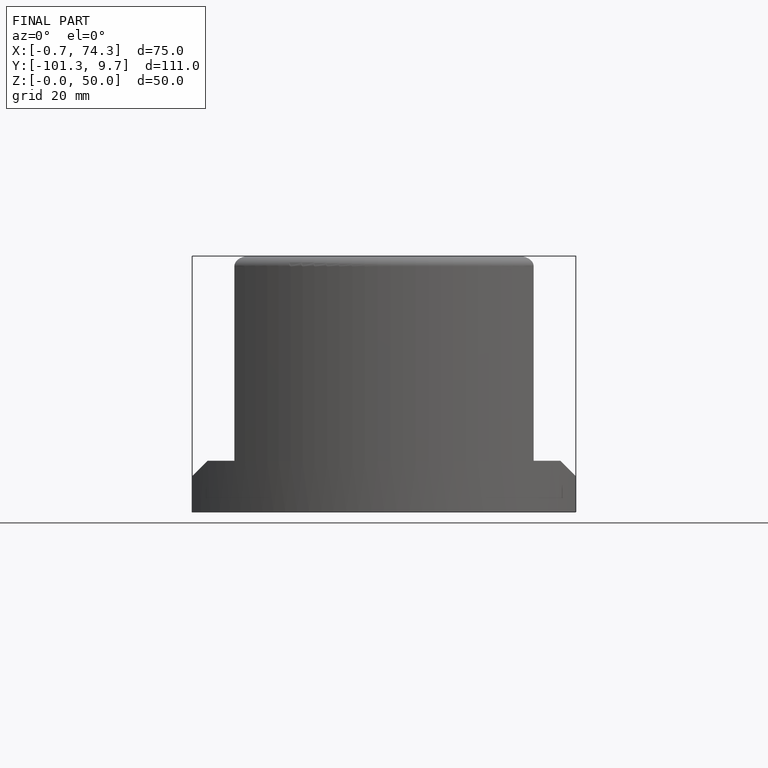
[diagram: finished part — front view with bounding-box wireframe]
